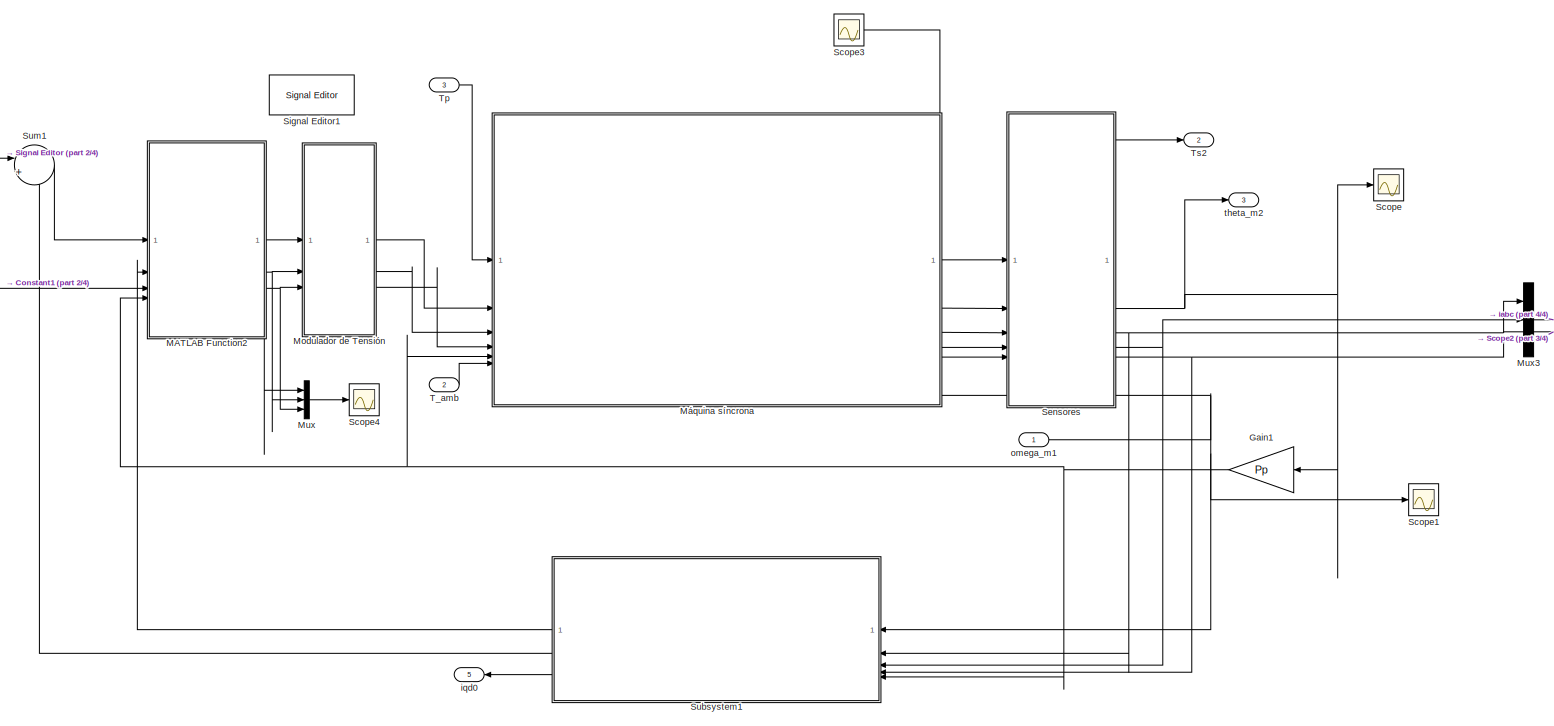
[diagram: root canvas - part 1/4, most of the canvas]
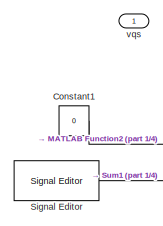
[diagram: root canvas - part 2/4, middle left region]
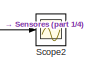
[diagram: root canvas - part 3/4, middle right region]
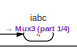
[diagram: root canvas - part 4/4, middle right region]
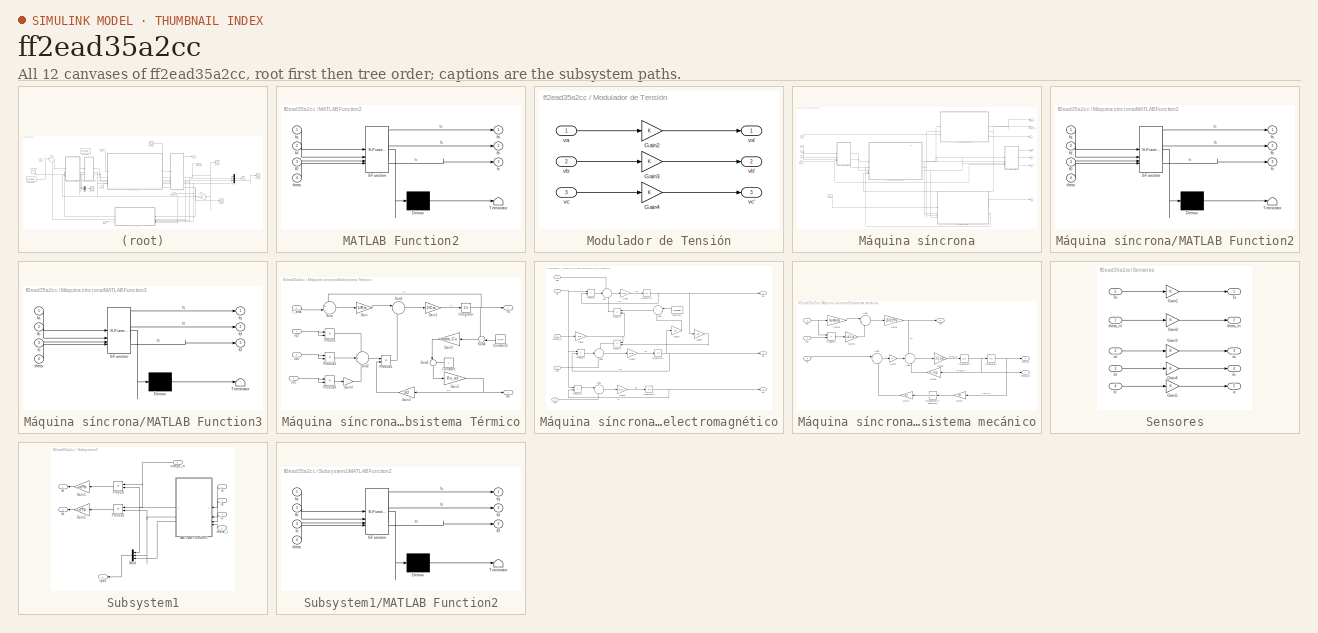
[diagram: thumbnail index - all 12 canvases of the model, root first then tree order]
MODEL slx_ff2ead35a2cc
KIND model
CONFIG AbsTol = auto
CONFIG EnableMultiTasking = off
CONFIG FixedStep = auto
CONFIG MaxStep = auto
CONFIG MinStep = auto
CONFIG RelTol = 1e-3
CONFIG SampleTimeConstraint = Unconstrained
CONFIG SolverName = ode45
CONFIG StartTime = 0.0
CONFIG StopTime = 1
BLOCK [Constant] Constant1
  Value = 0
BLOCK [Gain] Gain1
  Gain = Pp
BLOCK [SubSystem] MATLAB Function2
  ErrorFcn = Stateflow.Translate.translate
  LibrarySourceBlock = simulink/User-Defined\nFunctions/MATLAB Function
  PermitHierarchicalResolution = ExplicitOnly
  SFBlockType = MATLAB Function
  TreatAsAtomicUnit = on
BLOCK [Demux] MATLAB Function2/ Demux 
  Outputs = 1
BLOCK [S-Function] MATLAB Function2/ SFunction 
  EnableBusSupport = on
  FunctionName = sf_sfun
  PortCounts = [4 4]
  SFcnIsStateOwnerBlock = off
  SFunctionDeploymentMode = off
  Tag = Stateflow S-Function 8
BLOCK [Terminator] MATLAB Function2/ Terminator 
BLOCK [Inport] MATLAB Function2/f0
  Port = 3
BLOCK [Outport] MATLAB Function2/fa
BLOCK [Outport] MATLAB Function2/fb
  Port = 2
BLOCK [Outport] MATLAB Function2/fc
  Port = 3
BLOCK [Inport] MATLAB Function2/fd
  Port = 2
BLOCK [Inport] MATLAB Function2/fq
BLOCK [Inport] MATLAB Function2/theta
  Port = 4
BLOCK [SubSystem] Modulador de Tensión
BLOCK [Gain] Modulador de Tensión/Gain2
BLOCK [Gain] Modulador de Tensión/Gain3
BLOCK [Gain] Modulador de Tensión/Gain4
BLOCK [Inport] Modulador de Tensión/va
BLOCK [Outport] Modulador de Tensión/va'
BLOCK [Inport] Modulador de Tensión/vb
  Port = 2
BLOCK [Outport] Modulador de Tensión/vb'
  Port = 2
BLOCK [Inport] Modulador de Tensión/vc
  Port = 3
BLOCK [Outport] Modulador de Tensión/vc'
  Port = 3
BLOCK [Mux] Mux
  DisplayOption = bar
  Inputs = 3
BLOCK [Mux] Mux3
  DisplayOption = bar
  Inputs = 3
BLOCK [SubSystem] Máquina síncrona
  PortSchema = {"entries":[{"content":{"sides":[{"content":{"connectorIds":["In1","In2","In3","In4","In5","In6"]},"type":"ConnectorPlacement.EquallySpacedRectSide","uuid":"548fbf6f-bb54-461c-a3ca-ae13566b19bb"},{"content":{"connectorIds":["Out1","Out2","Out3","Out4","Out5"],"side":"RIGHT"},"type":"ConnectorPlacement.EquallySpacedRectSide","uuid":"c9a1420a-e64d-4e02-ad2b-140f5c663a2c"},{"content":{"connectorIds":...<+454ch>
BLOCK [Outport] Máquina síncrona/Ia
  Port = 2
BLOCK [Outport] Máquina síncrona/Ib
  Port = 3
BLOCK [Outport] Máquina síncrona/Ic
  Port = 4
BLOCK [SubSystem] Máquina síncrona/MATLAB Function2
  ErrorFcn = Stateflow.Translate.translate
  LibrarySourceBlock = simulink/User-Defined\nFunctions/MATLAB Function
  PermitHierarchicalResolution = ExplicitOnly
  SFBlockType = MATLAB Function
  TreatAsAtomicUnit = on
BLOCK [Demux] Máquina síncrona/MATLAB Function2/ Demux 
  Outputs = 1
BLOCK [S-Function] Máquina síncrona/MATLAB Function2/ SFunction 
  EnableBusSupport = on
  FunctionName = sf_sfun
  PortCounts = [4 4]
  SFcnIsStateOwnerBlock = off
  SFunctionDeploymentMode = off
  Tag = Stateflow S-Function 4
BLOCK [Terminator] Máquina síncrona/MATLAB Function2/ Terminator 
BLOCK [Inport] Máquina síncrona/MATLAB Function2/f0
  Port = 3
BLOCK [Outport] Máquina síncrona/MATLAB Function2/fa
BLOCK [Outport] Máquina síncrona/MATLAB Function2/fb
  Port = 2
BLOCK [Outport] Máquina síncrona/MATLAB Function2/fc
  Port = 3
BLOCK [Inport] Máquina síncrona/MATLAB Function2/fd
  Port = 2
BLOCK [Inport] Máquina síncrona/MATLAB Function2/fq
BLOCK [Inport] Máquina síncrona/MATLAB Function2/theta
  Port = 4
BLOCK [SubSystem] Máquina síncrona/MATLAB Function3
  ErrorFcn = Stateflow.Translate.translate
  LibrarySourceBlock = simulink/User-Defined\nFunctions/MATLAB Function
  PermitHierarchicalResolution = ExplicitOnly
  SFBlockType = MATLAB Function
  TreatAsAtomicUnit = on
BLOCK [Demux] Máquina síncrona/MATLAB Function3/ Demux 
  Outputs = 1
BLOCK [S-Function] Máquina síncrona/MATLAB Function3/ SFunction 
  EnableBusSupport = on
  FunctionName = sf_sfun
  PortCounts = [4 4]
  SFcnIsStateOwnerBlock = off
  SFunctionDeploymentMode = off
  Tag = Stateflow S-Function 6
BLOCK [Terminator] Máquina síncrona/MATLAB Function3/ Terminator 
BLOCK [Outport] Máquina síncrona/MATLAB Function3/f0
  Port = 3
BLOCK [Inport] Máquina síncrona/MATLAB Function3/fa
BLOCK [Inport] Máquina síncrona/MATLAB Function3/fb
  Port = 2
BLOCK [Inport] Máquina síncrona/MATLAB Function3/fc
  Port = 3
BLOCK [Outport] Máquina síncrona/MATLAB Function3/fd
  Port = 2
BLOCK [Outport] Máquina síncrona/MATLAB Function3/fq
BLOCK [Inport] Máquina síncrona/MATLAB Function3/theta
  Port = 4
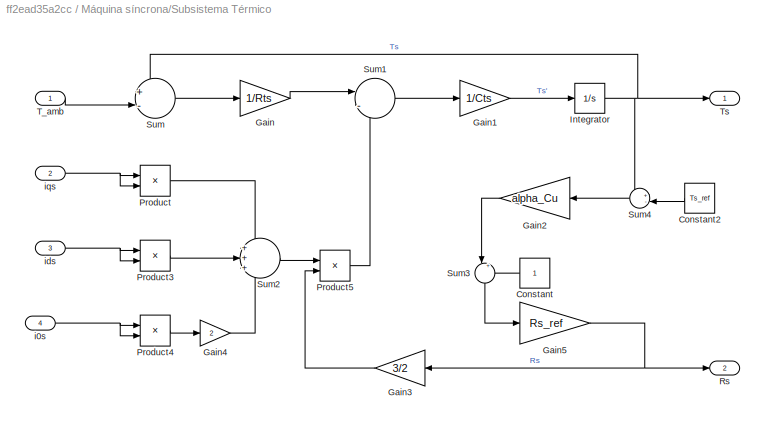
BLOCK [SubSystem] Máquina síncrona/Subsistema Térmico
BLOCK [Constant] Máquina síncrona/Subsistema Térmico/Constant
BLOCK [Constant] Máquina síncrona/Subsistema Térmico/Constant2
  Value = Ts_ref
BLOCK [Gain] Máquina síncrona/Subsistema Térmico/Gain
  Gain = 1/Rts
BLOCK [Gain] Máquina síncrona/Subsistema Térmico/Gain1
  Gain = 1/Cts
BLOCK [Gain] Máquina síncrona/Subsistema Térmico/Gain2
  Gain = alpha_Cu
BLOCK [Gain] Máquina síncrona/Subsistema Térmico/Gain3
  Gain = 3/2
BLOCK [Gain] Máquina síncrona/Subsistema Térmico/Gain4
  Gain = 2
BLOCK [Gain] Máquina síncrona/Subsistema Térmico/Gain5
  Gain = Rs_ref
BLOCK [Integrator] Máquina síncrona/Subsistema Térmico/Integrator
BLOCK [Product] Máquina síncrona/Subsistema Térmico/Product
BLOCK [Product] Máquina síncrona/Subsistema Térmico/Product3
BLOCK [Product] Máquina síncrona/Subsistema Térmico/Product4
BLOCK [Product] Máquina síncrona/Subsistema Térmico/Product5
BLOCK [Outport] Máquina síncrona/Subsistema Térmico/Rs
  Port = 2
BLOCK [Sum] Máquina síncrona/Subsistema Térmico/Sum
  Inputs = +-|
BLOCK [Sum] Máquina síncrona/Subsistema Térmico/Sum1
  Inputs = |-+
BLOCK [Sum] Máquina síncrona/Subsistema Térmico/Sum2
  Inputs = +++
BLOCK [Sum] Máquina síncrona/Subsistema Térmico/Sum3
  Inputs = |++
  NameLocation = right
BLOCK [Sum] Máquina síncrona/Subsistema Térmico/Sum4
  Inputs = +-|
BLOCK [Inport] Máquina síncrona/Subsistema Térmico/T_amb
BLOCK [Outport] Máquina síncrona/Subsistema Térmico/Ts
BLOCK [Inport] Máquina síncrona/Subsistema Térmico/i0s
  Port = 4
BLOCK [Inport] Máquina síncrona/Subsistema Térmico/ids
  Port = 3
BLOCK [Inport] Máquina síncrona/Subsistema Térmico/iqs
  Port = 2
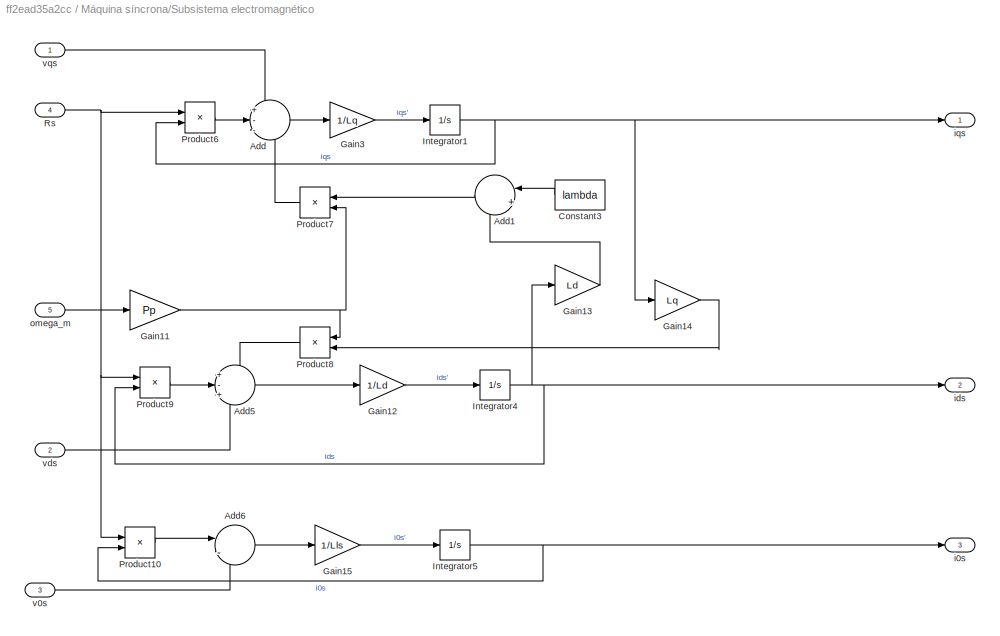
BLOCK [SubSystem] Máquina síncrona/Subsistema electromagnético
BLOCK [Sum] Máquina síncrona/Subsistema electromagnético/Add
  Inputs = +--
BLOCK [Sum] Máquina síncrona/Subsistema electromagnético/Add1
  Inputs = |++
BLOCK [Sum] Máquina síncrona/Subsistema electromagnético/Add5
  Inputs = +-+
BLOCK [Sum] Máquina síncrona/Subsistema electromagnético/Add6
  Inputs = |-+
BLOCK [Constant] Máquina síncrona/Subsistema electromagnético/Constant3
  Value = lambda
BLOCK [Gain] Máquina síncrona/Subsistema electromagnético/Gain11
  Gain = Pp
BLOCK [Gain] Máquina síncrona/Subsistema electromagnético/Gain12
  Gain = 1/Ld
BLOCK [Gain] Máquina síncrona/Subsistema electromagnético/Gain13
  Gain = Ld
BLOCK [Gain] Máquina síncrona/Subsistema electromagnético/Gain14
  Gain = Lq
BLOCK [Gain] Máquina síncrona/Subsistema electromagnético/Gain15
  Gain = 1/Lls
BLOCK [Gain] Máquina síncrona/Subsistema electromagnético/Gain3
  Gain = 1/Lq
BLOCK [Integrator] Máquina síncrona/Subsistema electromagnético/Integrator1
BLOCK [Integrator] Máquina síncrona/Subsistema electromagnético/Integrator4
BLOCK [Integrator] Máquina síncrona/Subsistema electromagnético/Integrator5
BLOCK [Product] Máquina síncrona/Subsistema electromagnético/Product10
BLOCK [Product] Máquina síncrona/Subsistema electromagnético/Product6
BLOCK [Product] Máquina síncrona/Subsistema electromagnético/Product7
BLOCK [Product] Máquina síncrona/Subsistema electromagnético/Product8
BLOCK [Product] Máquina síncrona/Subsistema electromagnético/Product9
BLOCK [Inport] Máquina síncrona/Subsistema electromagnético/Rs
  Port = 4
BLOCK [Outport] Máquina síncrona/Subsistema electromagnético/i0s
  Port = 3
BLOCK [Outport] Máquina síncrona/Subsistema electromagnético/ids
  Port = 2
BLOCK [Outport] Máquina síncrona/Subsistema electromagnético/iqs
BLOCK [Inport] Máquina síncrona/Subsistema electromagnético/omega_m
  Port = 5
BLOCK [Inport] Máquina síncrona/Subsistema electromagnético/v0s
  Port = 3
BLOCK [Inport] Máquina síncrona/Subsistema electromagnético/vds
  Port = 2
BLOCK [Inport] Máquina síncrona/Subsistema electromagnético/vqs
BLOCK [SubSystem] Máquina síncrona/Subsistema mecánico
BLOCK [Sum] Máquina síncrona/Subsistema mecánico/Add2
  Inputs = |++
BLOCK [Sum] Máquina síncrona/Subsistema mecánico/Add3
  Inputs = +--
BLOCK [Sum] Máquina síncrona/Subsistema mecánico/Add4
  Inputs = |++
BLOCK [Gain] Máquina síncrona/Subsistema mecánico/Gain1
  Gain = k_l
BLOCK [Gain] Máquina síncrona/Subsistema mecánico/Gain10
  Gain = Ld-Lq
BLOCK [Gain] Máquina síncrona/Subsistema mecánico/Gain4
  Gain = 1/r
BLOCK [Gain] Máquina síncrona/Subsistema mecánico/Gain5
  Gain = 1/J_eq
BLOCK [Gain] Máquina síncrona/Subsistema mecánico/Gain6
  Gain = b_eq
BLOCK [Gain] Máquina síncrona/Subsistema mecánico/Gain7
  Gain = 1/r
BLOCK [Gain] Máquina síncrona/Subsistema mecánico/Gain8
  Gain = lambda
BLOCK [Gain] Máquina síncrona/Subsistema mecánico/Gain9
  Gain = (3/2)*Pp
BLOCK [Integrator] Máquina síncrona/Subsistema mecánico/Integrator2
BLOCK [Integrator] Máquina síncrona/Subsistema mecánico/Integrator3
BLOCK [Product] Máquina síncrona/Subsistema mecánico/Product2
BLOCK [Outport] Máquina síncrona/Subsistema mecánico/Tm
  Port = 3
BLOCK [Inport] Máquina síncrona/Subsistema mecánico/Tp
  Port = 3
BLOCK [Trigonometry] Máquina síncrona/Subsistema mecánico/Trigonometric Function1
BLOCK [Inport] Máquina síncrona/Subsistema mecánico/ids
  Port = 2
BLOCK [Inport] Máquina síncrona/Subsistema mecánico/iqs
BLOCK [Outport] Máquina síncrona/Subsistema mecánico/omega_m
  Port = 2
BLOCK [Outport] Máquina síncrona/Subsistema mecánico/theta_m
BLOCK [Inport] Máquina síncrona/Tamb
  Port = 6
BLOCK [Outport] Máquina síncrona/Tm
  Port = 7
BLOCK [Inport] Máquina síncrona/Tp
BLOCK [Outport] Máquina síncrona/Ts
  Port = 5
BLOCK [Outport] Máquina síncrona/omega_m
  Port = 6
BLOCK [Outport] Máquina síncrona/theta_m
BLOCK [Inport] Máquina síncrona/theta_r
  Port = 5
BLOCK [Inport] Máquina síncrona/va
  Port = 2
BLOCK [Inport] Máquina síncrona/vb
  Port = 3
BLOCK [Inport] Máquina síncrona/vc
  Port = 4
BLOCK [Scope] Scope
  Floating = off
  NumInputPorts = 1
  ScopeSpecificationString = Simulink.scopes.TimeScopeBlockCfg('CurrentConfiguration', extmgr.ConfigurationSet(extmgr.Configuration('Core','General UI',true),extmgr.Configuration('Core','Source UI',true),extmgr.Configuration('Sources','WiredSimulink',true),extmgr.Configuration('Visuals','Time Domain',true,'SerializedDisplays',{struct('MinYLimReal','-45.9058','MaxYLimReal','60.69195','YLabelReal','','MinYLimMag','0.00000','Max...<+1382ch>
BLOCK [Scope] Scope1
  Floating = off
  NumInputPorts = 1
  ScopeSpecificationString = Simulink.scopes.TimeScopeBlockCfg('CurrentConfiguration', extmgr.ConfigurationSet(extmgr.Configuration('Core','General UI',true),extmgr.Configuration('Core','Source UI',true),extmgr.Configuration('Sources','WiredSimulink',true,'DataLoggingVariableName','ScopeData1'),extmgr.Configuration('Visuals','Time Domain',true,'SerializedDisplays',{struct('MinYLimReal','-45.12357','MaxYLimReal','281.22511','Y...<+1467ch>
BLOCK [Scope] Scope2
  Floating = off
  NumInputPorts = 1
  ScopeSpecificationString = Simulink.scopes.TimeScopeBlockCfg('CurrentConfiguration', extmgr.ConfigurationSet(extmgr.Configuration('Core','General UI',true),extmgr.Configuration('Core','Source UI',true),extmgr.Configuration('Sources','WiredSimulink',true,'DataLoggingVariableName','ScopeData2'),extmgr.Configuration('Visuals','Time Domain',true,'SerializedDisplays',{struct('MinYLimReal','-3.46032','MaxYLimReal','5.18627','YLab...<+1417ch>
BLOCK [Scope] Scope3
  Floating = off
  NumInputPorts = 1
  ScopeSpecificationString = Simulink.scopes.TimeScopeBlockCfg('CurrentConfiguration', extmgr.ConfigurationSet(extmgr.Configuration('Core','General UI',true),extmgr.Configuration('Core','Source UI',true),extmgr.Configuration('Sources','WiredSimulink',true,'DataLoggingVariableName','ScopeData1'),extmgr.Configuration('Visuals','Time Domain',true,'SerializedDisplays',{struct('MinYLimReal','-0.38321','MaxYLimReal','0.67936','YLab...<+1378ch>
BLOCK [Scope] Scope4
  Floating = off
  NumInputPorts = 1
  ScopeSpecificationString = Simulink.scopes.TimeScopeBlockCfg('CurrentConfiguration', extmgr.ConfigurationSet(extmgr.Configuration('Core','General UI',true),extmgr.Configuration('Core','Source UI',true),extmgr.Configuration('Sources','WiredSimulink',true,'DataLoggingVariableName','ScopeData2'),extmgr.Configuration('Visuals','Time Domain',true,'SerializedDisplays',{struct('MinYLimReal','-19.79825','MaxYLimReal','15.2135','YLa...<+1445ch>
BLOCK [SubSystem] Sensores
BLOCK [Gain] Sensores/Gain1
BLOCK [Gain] Sensores/Gain2
BLOCK [Gain] Sensores/Gain3
BLOCK [Gain] Sensores/Gain4
BLOCK [Gain] Sensores/Gain5
BLOCK [Inport] Sensores/Ic'
  Port = 4
BLOCK [Outport] Sensores/Ts
BLOCK [Inport] Sensores/Ts'
  Port = 5
BLOCK [Outport] Sensores/ia
  Port = 3
BLOCK [Inport] Sensores/ia'
  Port = 2
BLOCK [Outport] Sensores/ib
  Port = 4
BLOCK [Inport] Sensores/ib'
  Port = 3
BLOCK [Outport] Sensores/ic
  Port = 5
BLOCK [Outport] Sensores/theta_m
  Port = 2
BLOCK [Inport] Sensores/theta_m'
BLOCK [Reference] Signal Editor  REF=SignalEditorBlockLib/Signal Editor
  LibrarySourceBlock = simulink/Sources/Signal Editor
  SourceBlock = SignalEditorBlockLib/Signal Editor
  SourceType = SignalEditor
  UserDataPersistent = on
BLOCK [Reference] Signal Editor1  REF=SignalEditorBlockLib/Signal Editor
  LibrarySourceBlock = simulink/Sources/Signal Editor
  SourceBlock = SignalEditorBlockLib/Signal Editor
  SourceType = SignalEditor
  UserDataPersistent = on
BLOCK [SubSystem] Subsystem1
BLOCK [Gain] Subsystem1/Gain1
  Gain = -Lq*Pp
BLOCK [Gain] Subsystem1/Gain2
  Gain = Ld*Pp
BLOCK [SubSystem] Subsystem1/MATLAB Function2
  ErrorFcn = Stateflow.Translate.translate
  LibrarySourceBlock = simulink/User-Defined\nFunctions/MATLAB Function
  PermitHierarchicalResolution = ExplicitOnly
  SFBlockType = MATLAB Function
  TreatAsAtomicUnit = on
BLOCK [Demux] Subsystem1/MATLAB Function2/ Demux 
  Outputs = 1
BLOCK [S-Function] Subsystem1/MATLAB Function2/ SFunction 
  EnableBusSupport = on
  FunctionName = sf_sfun
  PortCounts = [4 4]
  SFcnIsStateOwnerBlock = off
  SFunctionDeploymentMode = off
  Tag = Stateflow S-Function 7
BLOCK [Terminator] Subsystem1/MATLAB Function2/ Terminator 
BLOCK [Outport] Subsystem1/MATLAB Function2/f0
  Port = 3
BLOCK [Inport] Subsystem1/MATLAB Function2/fa
BLOCK [Inport] Subsystem1/MATLAB Function2/fb
  Port = 2
BLOCK [Inport] Subsystem1/MATLAB Function2/fc
  Port = 3
BLOCK [Outport] Subsystem1/MATLAB Function2/fd
  Port = 2
BLOCK [Outport] Subsystem1/MATLAB Function2/fq
BLOCK [Inport] Subsystem1/MATLAB Function2/theta
  Port = 4
BLOCK [Mux] Subsystem1/Mux4
  DisplayOption = bar
  Inputs = 3
BLOCK [Product] Subsystem1/Product
BLOCK [Product] Subsystem1/Product1
BLOCK [Inport] Subsystem1/ia
  Port = 2
BLOCK [Inport] Subsystem1/ib
  Port = 3
BLOCK [Inport] Subsystem1/ic
  Port = 4
BLOCK [Outport] Subsystem1/iqd0
  Port = 3
BLOCK [Inport] Subsystem1/omega_m
BLOCK [Inport] Subsystem1/theta_r
  Port = 5
BLOCK [Outport] Subsystem1/vd'
BLOCK [Outport] Subsystem1/vq'
  Port = 2
BLOCK [Sum] Sum1
  Inputs = |++
BLOCK [Inport] T_amb
  Port = 2
  PortDimensions = 1
BLOCK [Inport] Tp
  Port = 3
  PortDimensions = 1
BLOCK [Outport] Ts2
  Port = 2
BLOCK [Outport] iabc
  Port = 4
BLOCK [Outport] iqd0
  Port = 5
BLOCK [Outport] omega_m1
BLOCK [Outport] theta_m2
  Port = 3
BLOCK [Inport] vqs
  PortDimensions = 1
ANNOTATION Máquina síncrona: iqs
LINE Constant1:1 -> MATLAB Function2:3
NET Gain1:1 -> MATLAB Function2:4, Máquina síncrona:5, Subsystem1:5
NET MATLAB Function2:1 -> Modulador de Tensión:1, Mux:1
NET MATLAB Function2:2 -> Modulador de Tensión:2, Mux:2
NET MATLAB Function2:3 -> Modulador de Tensión:3, Mux:3
LINE Modulador de Tensión/Gain2:1 -> Modulador de Tensión/va':1
LINE Modulador de Tensión/Gain3:1 -> Modulador de Tensión/vb':1
LINE Modulador de Tensión/Gain4:1 -> Modulador de Tensión/vc':1
LINE Modulador de Tensión/va:1 -> Modulador de Tensión/Gain2:1
LINE Modulador de Tensión/vb:1 -> Modulador de Tensión/Gain3:1
LINE Modulador de Tensión/vc:1 -> Modulador de Tensión/Gain4:1
LINE Modulador de Tensión:1 -> Máquina síncrona:2
LINE Modulador de Tensión:2 -> Máquina síncrona:3
LINE Modulador de Tensión:3 -> Máquina síncrona:4
LINE Mux3:1 -> iabc:1
LINE Mux:1 -> Scope4:1
LINE Máquina síncrona/MATLAB Function2:1 -> Máquina síncrona/Ia:1
LINE Máquina síncrona/MATLAB Function2:2 -> Máquina síncrona/Ib:1
LINE Máquina síncrona/MATLAB Function2:3 -> Máquina síncrona/Ic:1
LINE Máquina síncrona/MATLAB Function3:1 -> Máquina síncrona/Subsistema electromagnético:1
LINE Máquina síncrona/MATLAB Function3:2 -> Máquina síncrona/Subsistema electromagnético:2
LINE Máquina síncrona/MATLAB Function3:3 -> Máquina síncrona/Subsistema electromagnético:3
LINE Máquina síncrona/Subsistema Térmico/Constant2:1 -> Máquina síncrona/Subsistema Térmico/Sum4:2
LINE Máquina síncrona/Subsistema Térmico/Constant:1 -> Máquina síncrona/Subsistema Térmico/Sum3:2
LINE Máquina síncrona/Subsistema Térmico/Gain1:1 -> Máquina síncrona/Subsistema Térmico/Integrator:1
LINE Máquina síncrona/Subsistema Térmico/Gain2:1 -> Máquina síncrona/Subsistema Térmico/Sum3:1
LINE Máquina síncrona/Subsistema Térmico/Gain3:1 -> Máquina síncrona/Subsistema Térmico/Product5:2
LINE Máquina síncrona/Subsistema Térmico/Gain4:1 -> Máquina síncrona/Subsistema Térmico/Sum2:3
NET Máquina síncrona/Subsistema Térmico/Gain5:1 -> Máquina síncrona/Subsistema Térmico/Gain3:1, Máquina síncrona/Subsistema Térmico/Rs:1
LINE Máquina síncrona/Subsistema Térmico/Gain:1 -> Máquina síncrona/Subsistema Térmico/Sum1:1
NET Máquina síncrona/Subsistema Térmico/Integrator:1 -> Máquina síncrona/Subsistema Térmico/Sum4:1, Máquina síncrona/Subsistema Térmico/Sum:1, Máquina síncrona/Subsistema Térmico/Ts:1
LINE Máquina síncrona/Subsistema Térmico/Product3:1 -> Máquina síncrona/Subsistema Térmico/Sum2:2
LINE Máquina síncrona/Subsistema Térmico/Product4:1 -> Máquina síncrona/Subsistema Térmico/Gain4:1
LINE Máquina síncrona/Subsistema Térmico/Product5:1 -> Máquina síncrona/Subsistema Térmico/Sum1:2
LINE Máquina síncrona/Subsistema Térmico/Product:1 -> Máquina síncrona/Subsistema Térmico/Sum2:1
LINE Máquina síncrona/Subsistema Térmico/Sum1:1 -> Máquina síncrona/Subsistema Térmico/Gain1:1
LINE Máquina síncrona/Subsistema Térmico/Sum2:1 -> Máquina síncrona/Subsistema Térmico/Product5:1
LINE Máquina síncrona/Subsistema Térmico/Sum3:1 -> Máquina síncrona/Subsistema Térmico/Gain5:1
LINE Máquina síncrona/Subsistema Térmico/Sum4:1 -> Máquina síncrona/Subsistema Térmico/Gain2:1
LINE Máquina síncrona/Subsistema Térmico/Sum:1 -> Máquina síncrona/Subsistema Térmico/Gain:1
LINE Máquina síncrona/Subsistema Térmico/T_amb:1 -> Máquina síncrona/Subsistema Térmico/Sum:2
NET Máquina síncrona/Subsistema Térmico/i0s:1 -> Máquina síncrona/Subsistema Térmico/Product4:1, Máquina síncrona/Subsistema Térmico/Product4:2
NET Máquina síncrona/Subsistema Térmico/ids:1 -> Máquina síncrona/Subsistema Térmico/Product3:1, Máquina síncrona/Subsistema Térmico/Product3:2
NET Máquina síncrona/Subsistema Térmico/iqs:1 -> Máquina síncrona/Subsistema Térmico/Product:1, Máquina síncrona/Subsistema Térmico/Product:2
LINE Máquina síncrona/Subsistema Térmico:1 -> Máquina síncrona/Ts:1
LINE Máquina síncrona/Subsistema Térmico:2 -> Máquina síncrona/Subsistema electromagnético:4
LINE Máquina síncrona/Subsistema electromagnético/Add1:1 -> Máquina síncrona/Subsistema electromagnético/Product7:1
LINE Máquina síncrona/Subsistema electromagnético/Add5:1 -> Máquina síncrona/Subsistema electromagnético/Gain12:1
LINE Máquina síncrona/Subsistema electromagnético/Add6:1 -> Máquina síncrona/Subsistema electromagnético/Gain15:1
LINE Máquina síncrona/Subsistema electromagnético/Add:1 -> Máquina síncrona/Subsistema electromagnético/Gain3:1
LINE Máquina síncrona/Subsistema electromagnético/Constant3:1 -> Máquina síncrona/Subsistema electromagnético/Add1:1
NET Máquina síncrona/Subsistema electromagnético/Gain11:1 -> Máquina síncrona/Subsistema electromagnético/Product7:2, Máquina síncrona/Subsistema electromagnético/Product8:1
LINE Máquina síncrona/Subsistema electromagnético/Gain12:1 -> Máquina síncrona/Subsistema electromagnético/Integrator4:1
LINE Máquina síncrona/Subsistema electromagnético/Gain13:1 -> Máquina síncrona/Subsistema electromagnético/Add1:2
LINE Máquina síncrona/Subsistema electromagnético/Gain14:1 -> Máquina síncrona/Subsistema electromagnético/Product8:2
LINE Máquina síncrona/Subsistema electromagnético/Gain15:1 -> Máquina síncrona/Subsistema electromagnético/Integrator5:1
LINE Máquina síncrona/Subsistema electromagnético/Gain3:1 -> Máquina síncrona/Subsistema electromagnético/Integrator1:1
NET Máquina síncrona/Subsistema electromagnético/Integrator1:1 -> Máquina síncrona/Subsistema electromagnético/Gain14:1, Máquina síncrona/Subsistema electromagnético/Product6:2, Máquina síncrona/Subsistema electromagnético/iqs:1
NET Máquina síncrona/Subsistema electromagnético/Integrator4:1 -> Máquina síncrona/Subsistema electromagnético/Gain13:1, Máquina síncrona/Subsistema electromagnético/Product9:2, Máquina síncrona/Subsistema electromagnético/ids:1
NET Máquina síncrona/Subsistema electromagnético/Integrator5:1 -> Máquina síncrona/Subsistema electromagnético/Product10:2, Máquina síncrona/Subsistema electromagnético/i0s:1
LINE Máquina síncrona/Subsistema electromagnético/Product10:1 -> Máquina síncrona/Subsistema electromagnético/Add6:1
LINE Máquina síncrona/Subsistema electromagnético/Product6:1 -> Máquina síncrona/Subsistema electromagnético/Add:2
LINE Máquina síncrona/Subsistema electromagnético/Product7:1 -> Máquina síncrona/Subsistema electromagnético/Add:3
LINE Máquina síncrona/Subsistema electromagnético/Product8:1 -> Máquina síncrona/Subsistema electromagnético/Add5:1
LINE Máquina síncrona/Subsistema electromagnético/Product9:1 -> Máquina síncrona/Subsistema electromagnético/Add5:2
NET Máquina síncrona/Subsistema electromagnético/Rs:1 -> Máquina síncrona/Subsistema electromagnético/Product10:1, Máquina síncrona/Subsistema electromagnético/Product6:1, Máquina síncrona/Subsistema electromagnético/Product9:1
LINE Máquina síncrona/Subsistema electromagnético/omega_m:1 -> Máquina síncrona/Subsistema electromagnético/Gain11:1
LINE Máquina síncrona/Subsistema electromagnético/v0s:1 -> Máquina síncrona/Subsistema electromagnético/Add6:2
LINE Máquina síncrona/Subsistema electromagnético/vds:1 -> Máquina síncrona/Subsistema electromagnético/Add5:3
LINE Máquina síncrona/Subsistema electromagnético/vqs:1 -> Máquina síncrona/Subsistema electromagnético/Add:1
NET Máquina síncrona/Subsistema electromagnético:1 -> Máquina síncrona/MATLAB Function2:1, Máquina síncrona/Subsistema Térmico:2, Máquina síncrona/Subsistema mecánico:1
NET Máquina síncrona/Subsistema electromagnético:2 -> Máquina síncrona/MATLAB Function2:2, Máquina síncrona/Subsistema Térmico:3, Máquina síncrona/Subsistema mecánico:2
NET Máquina síncrona/Subsistema electromagnético:3 -> Máquina síncrona/MATLAB Function2:3, Máquina síncrona/Subsistema Térmico:4
LINE Máquina síncrona/Subsistema mecánico/Add2:1 -> Máquina síncrona/Subsistema mecánico/Gain7:1
LINE Máquina síncrona/Subsistema mecánico/Add3:1 -> Máquina síncrona/Subsistema mecánico/Gain5:1
LINE Máquina síncrona/Subsistema mecánico/Add4:1 -> Máquina síncrona/Subsistema mecánico/Gain9:1
LINE Máquina síncrona/Subsistema mecánico/Gain10:1 -> Máquina síncrona/Subsistema mecánico/Add4:2
LINE Máquina síncrona/Subsistema mecánico/Gain1:1 -> Máquina síncrona/Subsistema mecánico/Add2:2
LINE Máquina síncrona/Subsistema mecánico/Gain4:1 -> Máquina síncrona/Subsistema mecánico/Trigonometric Function1:1
LINE Máquina síncrona/Subsistema mecánico/Gain5:1 -> Máquina síncrona/Subsistema mecánico/Integrator2:1
LINE Máquina síncrona/Subsistema mecánico/Gain6:1 -> Máquina síncrona/Subsistema mecánico/Add3:3
LINE Máquina síncrona/Subsistema mecánico/Gain7:1 -> Máquina síncrona/Subsistema mecánico/Add3:2
LINE Máquina síncrona/Subsistema mecánico/Gain8:1 -> Máquina síncrona/Subsistema mecánico/Add4:1
NET Máquina síncrona/Subsistema mecánico/Gain9:1 -> Máquina síncrona/Subsistema mecánico/Add3:1, Máquina síncrona/Subsistema mecánico/Tm:1
NET Máquina síncrona/Subsistema mecánico/Integrator2:1 -> Máquina síncrona/Subsistema mecánico/Gain6:1, Máquina síncrona/Subsistema mecánico/Integrator3:1, Máquina síncrona/Subsistema mecánico/omega_m:1
NET Máquina síncrona/Subsistema mecánico/Integrator3:1 -> Máquina síncrona/Subsistema mecánico/Gain4:1, Máquina síncrona/Subsistema mecánico/theta_m:1
LINE Máquina síncrona/Subsistema mecánico/Product2:1 -> Máquina síncrona/Subsistema mecánico/Gain10:1
LINE Máquina síncrona/Subsistema mecánico/Tp:1 -> Máquina síncrona/Subsistema mecánico/Add2:1
LINE Máquina síncrona/Subsistema mecánico/Trigonometric Function1:1 -> Máquina síncrona/Subsistema mecánico/Gain1:1
LINE Máquina síncrona/Subsistema mecánico/ids:1 -> Máquina síncrona/Subsistema mecánico/Product2:2
NET Máquina síncrona/Subsistema mecánico/iqs:1 -> Máquina síncrona/Subsistema mecánico/Gain8:1, Máquina síncrona/Subsistema mecánico/Product2:1
LINE Máquina síncrona/Subsistema mecánico:1 -> Máquina síncrona/theta_m:1
NET Máquina síncrona/Subsistema mecánico:2 -> Máquina síncrona/Subsistema electromagnético:5, Máquina síncrona/omega_m:1
LINE Máquina síncrona/Subsistema mecánico:3 -> Máquina síncrona/Tm:1
LINE Máquina síncrona/Tamb:1 -> Máquina síncrona/Subsistema Térmico:1
LINE Máquina síncrona/Tp:1 -> Máquina síncrona/Subsistema mecánico:3
NET Máquina síncrona/theta_r:1 -> Máquina síncrona/MATLAB Function2:4, Máquina síncrona/MATLAB Function3:4
LINE Máquina síncrona/va:1 -> Máquina síncrona/MATLAB Function3:1
LINE Máquina síncrona/vb:1 -> Máquina síncrona/MATLAB Function3:2
LINE Máquina síncrona/vc:1 -> Máquina síncrona/MATLAB Function3:3
LINE Máquina síncrona:1 -> Sensores:1
LINE Máquina síncrona:2 -> Sensores:2
LINE Máquina síncrona:3 -> Sensores:3
LINE Máquina síncrona:4 -> Sensores:4
LINE Máquina síncrona:5 -> Sensores:5
NET Máquina síncrona:6 -> Scope1:1, Subsystem1:1, omega_m1:1
LINE Máquina síncrona:7 -> Scope3:1
LINE Sensores/Gain1:1 -> Sensores/Ts:1
LINE Sensores/Gain2:1 -> Sensores/theta_m:1
LINE Sensores/Gain3:1 -> Sensores/ia:1
LINE Sensores/Gain4:1 -> Sensores/ib:1
LINE Sensores/Gain5:1 -> Sensores/ic:1
LINE Sensores/Ic':1 -> Sensores/Gain5:1
LINE Sensores/Ts':1 -> Sensores/Gain1:1
LINE Sensores/ia':1 -> Sensores/Gain3:1
LINE Sensores/ib':1 -> Sensores/Gain4:1
LINE Sensores/theta_m':1 -> Sensores/Gain2:1
LINE Sensores:1 -> Ts2:1
NET Sensores:2 -> Gain1:1, Scope:1, theta_m2:1
NET Sensores:3 -> Mux3:1, Scope2:1, Subsystem1:2
NET Sensores:4 -> Mux3:2, Subsystem1:3
NET Sensores:5 -> Mux3:3, Subsystem1:4
LINE Signal Editor:1 -> Sum1:1
LINE Subsystem1/Gain1:1 -> Subsystem1/vd':1
LINE Subsystem1/Gain2:1 -> Subsystem1/vq':1
NET Subsystem1/MATLAB Function2:1 -> Subsystem1/Mux4:1, Subsystem1/Product:2
NET Subsystem1/MATLAB Function2:2 -> Subsystem1/Mux4:2, Subsystem1/Product1:2
LINE Subsystem1/MATLAB Function2:3 -> Subsystem1/Mux4:3
LINE Subsystem1/Mux4:1 -> Subsystem1/iqd0:1
LINE Subsystem1/Product1:1 -> Subsystem1/Gain2:1
LINE Subsystem1/Product:1 -> Subsystem1/Gain1:1
LINE Subsystem1/ia:1 -> Subsystem1/MATLAB Function2:1
LINE Subsystem1/ib:1 -> Subsystem1/MATLAB Function2:2
LINE Subsystem1/ic:1 -> Subsystem1/MATLAB Function2:3
NET Subsystem1/omega_m:1 -> Subsystem1/Product1:1, Subsystem1/Product:1
LINE Subsystem1/theta_r:1 -> Subsystem1/MATLAB Function2:4
LINE Subsystem1:1 -> MATLAB Function2:2
LINE Subsystem1:2 -> Sum1:2
LINE Subsystem1:3 -> iqd0:1
LINE Sum1:1 -> MATLAB Function2:1
LINE T_amb:1 -> Máquina síncrona:6
LINE Tp:1 -> Máquina síncrona:1
note: NET lines group one-source signal fan-out (src -> all destinations, sorted); 1:1 wires keep LINE
CHART Máquina síncrona/MATLAB Function2 states=1 transitions=1
  STATE_LABEL 'eML_blk_kernel()'
  STATE_LABEL 'SCRIPT:\nfunction [fa,fb,fc] = TI_Park(fq,fd,f0,theta)\n\nf = (2/3)*[     cos(theta)              sin(theta)         1;\n           cos(theta - (2*pi)/3)   sin(theta - (2*pi)/3)   1;\n           cos(theta + (2*pi)/3)   sin(theta + (2*pi)/3)   1];\n\nresultados = f*[fq;fd;f0];\nfa = resultados(1);\nfb = resultados(2);\nfc = resultados(3);\n\n'
CHART Máquina síncrona/MATLAB Function3 states=1 transitions=1
  STATE_LABEL 'eML_blk_kernel()'
  STATE_LABEL 'SCRIPT:\nfunction [fq,fd,f0] = TD_Park(fa,fb,fc,theta)\n\nf = (2/3)*[cos(theta)  cos(theta - (2*pi)/3)   cos(theta + (2*pi)/3);\n           sin(theta)  sin(theta - (2*pi)/3)   sin(theta + (2*pi)/3);\n              1/2              1/2                     1/2         ];\n\nresultados = f*[fa;fb;fc];\nfq = resultados(1);\nfd = resultados(2);\nf0 = resultados(3);\n'
CHART Subsystem1/MATLAB Function2 states=1 transitions=1
  STATE_LABEL 'eML_blk_kernel()'
  STATE_LABEL 'SCRIPT:\nfunction [fq,fd,f0] = TD_Park(fa,fb,fc,theta)\n\nf = (2/3)*[cos(theta)  cos(theta - (2*pi)/3)   cos(theta + (2*pi)/3);\n           sin(theta)  sin(theta - (2*pi)/3)   sin(theta + (2*pi)/3);\n              1/2              1/2                     1/2         ];\n\nresultados = f*[fa;fb;fc];\nfq = resultados(1);\nfd = resultados(2);\nf0 = resultados(3);\n'
CHART MATLAB Function2 states=1 transitions=1
  STATE_LABEL 'eML_blk_kernel()'
  STATE_LABEL 'SCRIPT:\nfunction [fa,fb,fc] = TI_Park(fq,fd,f0,theta)\n\nf = (2/3)*[     cos(theta)              sin(theta)         1;\n           cos(theta - (2*pi)/3)   sin(theta - (2*pi)/3)   1;\n           cos(theta + (2*pi)/3)   sin(theta + (2*pi)/3)   1];\n\nresultados = f*[fq;fd;f0];\nfa = resultados(1);\nfb = resultados(2);\nfc = resultados(3);\n\n'
CHART  states=0 transitions=0
CHART  states=0 transitions=0
CHART  states=0 transitions=0
CHART  states=0 transitions=0
